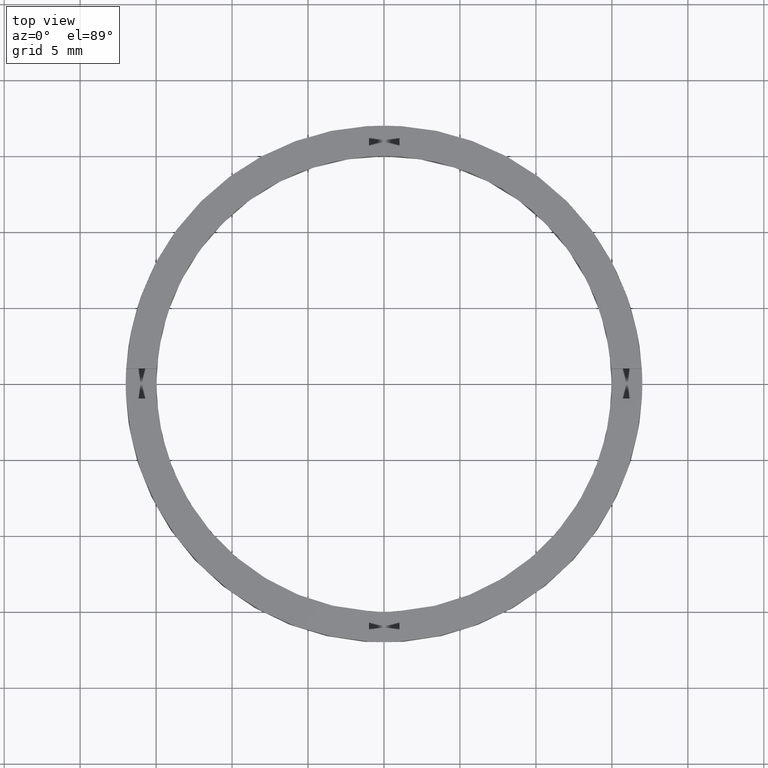
[diagram: clean part render]
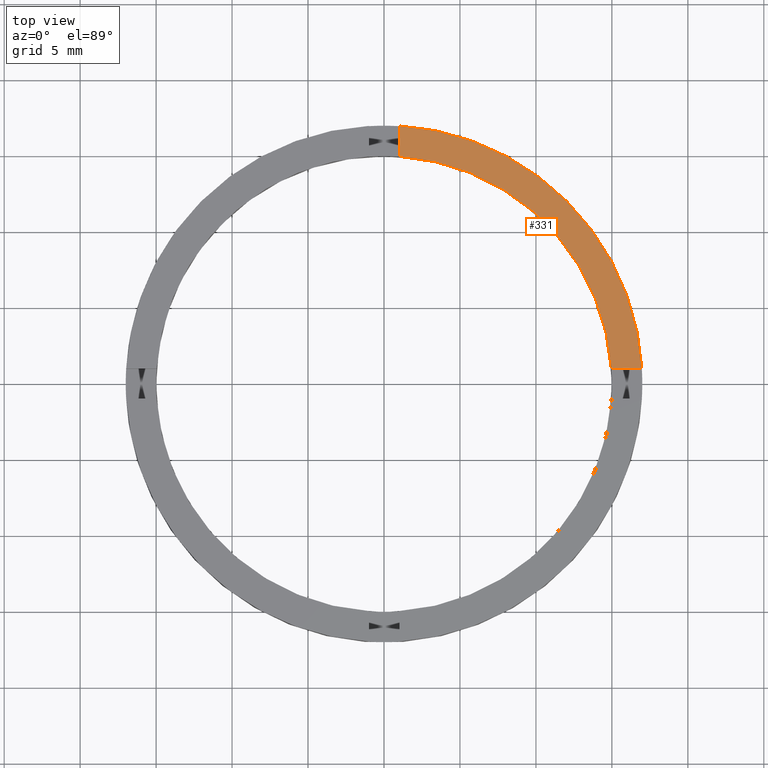
[diagram: same view with one face highlighted and labeled with its STEP entity id]
A machine part, top view. The second image highlights one B-rep face of the part: STEP entity #331.
In plain terms, the highlighted planar face has unit normal (0, 0, 1).
Its self-contained STEP definition (entity closure, byte-faithful):
#13 = DIRECTION ( 'NONE',  ( 0.000000000000000000, 0.000000000000000000, 1.000000000000000000 ) ) ;
#33 = AXIS2_PLACEMENT_3D ( 'NONE', #603, #13, #138 ) ;
#40 = FACE_OUTER_BOUND ( 'NONE', #456, .T. ) ;
#63 = DIRECTION ( 'NONE',  ( 0.000000000000000000, 1.000000000000000000, 0.000000000000000000 ) ) ;
#105 = DIRECTION ( 'NONE',  ( 1.000000000000000000, 0.000000000000000000, -0.000000000000000000 ) ) ;
#123 = VERTEX_POINT ( 'NONE', #310 ) ;
#136 = CARTESIAN_POINT ( 'NONE',  ( 0.000000000000000000, 0.000000000000000000, 2.500000000000000000 ) ) ;
#138 = DIRECTION ( 'NONE',  ( 1.000000000000000000, 0.000000000000000000, 0.000000000000000000 ) ) ;
#176 = EDGE_CURVE ( 'NONE', #707, #215, #285, .T. ) ;
#214 = CARTESIAN_POINT ( 'NONE',  ( 14.96662954709577775, 0.9999999999998411271, 2.500000000000000000 ) ) ;
#215 = VERTEX_POINT ( 'NONE', #718 ) ;
#265 = DIRECTION ( 'NONE',  ( 1.000000000000000000, 0.000000000000000000, 0.000000000000000000 ) ) ;
#267 = VECTOR ( 'NONE', #63, 1000.000000000000000 ) ;
#273 = LINE ( 'NONE', #274, #546 ) ;
#274 = CARTESIAN_POINT ( 'NONE',  ( 6.999999999999995559, 0.9999999999998406830, 2.500000000000000000 ) ) ;
#285 = LINE ( 'NONE', #590, #267 ) ;
#310 = CARTESIAN_POINT ( 'NONE',  ( 16.97056274847714974, 0.9999999999998411271, 2.500000000000000000 ) ) ;
#313 = CARTESIAN_POINT ( 'NONE',  ( 0.9999999999999749090, 14.96662954709576709, 2.500000000000000000 ) ) ;
#314 = EDGE_CURVE ( 'NONE', #123, #468, #273, .T. ) ;
#329 = DIRECTION ( 'NONE',  ( -1.000000000000000000, -4.336808689942018352E-17, -0.000000000000000000 ) ) ;
#331 = ADVANCED_FACE ( 'NONE', ( #40 ), #639, .T. ) ;
#393 = EDGE_CURVE ( 'NONE', #123, #215, #541, .T. ) ;
#410 = CIRCLE ( 'NONE', #33, 15.00000000000000000 ) ;
#456 = EDGE_LOOP ( 'NONE', ( #605, #698, #627, #477 ) ) ;
#468 = VERTEX_POINT ( 'NONE', #214 ) ;
#477 = ORIENTED_EDGE ( 'NONE', *, *, #393, .T. ) ;
#479 = DIRECTION ( 'NONE',  ( 0.000000000000000000, 0.000000000000000000, 1.000000000000000000 ) ) ;
#502 = AXIS2_PLACEMENT_3D ( 'NONE', #136, #551, #265 ) ;
#541 = CIRCLE ( 'NONE', #502, 17.00000000000000000 ) ;
#546 = VECTOR ( 'NONE', #329, 1000.000000000000000 ) ;
#551 = DIRECTION ( 'NONE',  ( 0.000000000000000000, 0.000000000000000000, 1.000000000000000000 ) ) ;
#590 = CARTESIAN_POINT ( 'NONE',  ( 0.9999999999999749090, 7.000000000000000888, 2.500000000000000000 ) ) ;
#603 = CARTESIAN_POINT ( 'NONE',  ( 0.000000000000000000, 0.000000000000000000, 2.500000000000000000 ) ) ;
#605 = ORIENTED_EDGE ( 'NONE', *, *, #176, .F. ) ;
#627 = ORIENTED_EDGE ( 'NONE', *, *, #314, .F. ) ;
#639 = PLANE ( 'NONE',  #665 ) ;
#642 = EDGE_CURVE ( 'NONE', #468, #707, #410, .T. ) ;
#665 = AXIS2_PLACEMENT_3D ( 'NONE', #776, #479, #105 ) ;
#698 = ORIENTED_EDGE ( 'NONE', *, *, #642, .F. ) ;
#707 = VERTEX_POINT ( 'NONE', #313 ) ;
#718 = CARTESIAN_POINT ( 'NONE',  ( 0.9999999999999749090, 16.97056274847714263, 2.500000000000000000 ) ) ;
#776 = CARTESIAN_POINT ( 'NONE',  ( 0.000000000000000000, 0.000000000000000000, 2.500000000000000000 ) ) ;